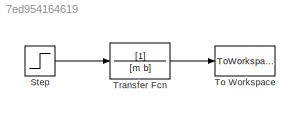
MODEL slx_7ed954164619
KIND model
CONFIG InitFcn = m=1000;\nb=50;\nu=500;
CONFIG StartFcn = m=1000;\nb=50;\nu=500;
CONFIG StopFcn = plot(v)\ngrid
BLOCK [Step] Step
  After = u
  Before = u
  SampleTime = 0.01
  Time = 0
BLOCK [ToWorkspace] To Workspace
  FixptAsFi = on
  MaxDataPoints = inf
  Ports = [1]
  SampleTime = -1
  Save2DSignal = 3-D array (concatenate along third dimension)
  SaveFormat = Timeseries
  VariableName = v
BLOCK [TransferFcn] Transfer Fcn
  Denominator = [m b]
LINE Step:1 -> Transfer Fcn:1
LINE Transfer Fcn:1 -> To Workspace:1
